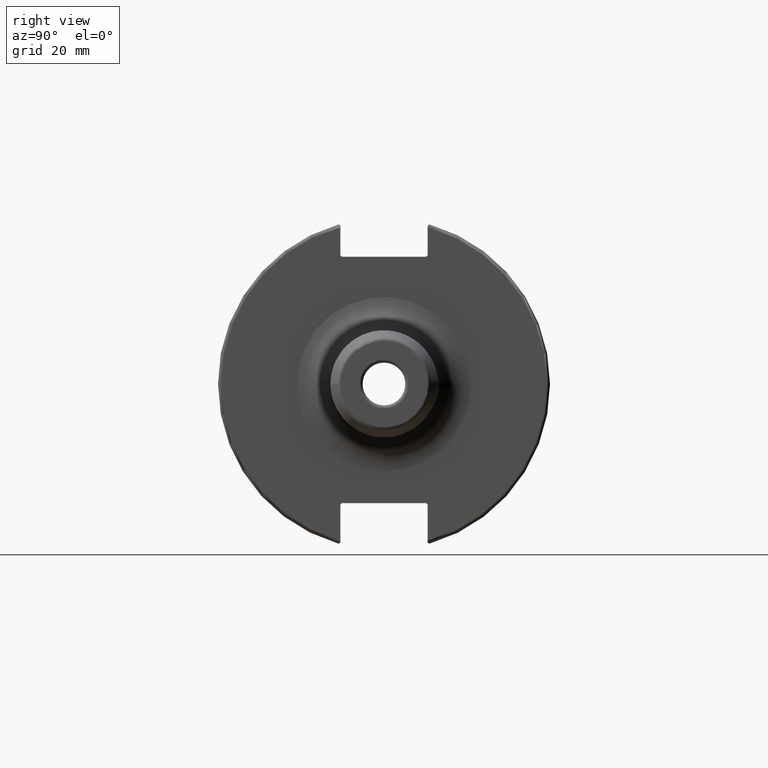
[diagram: clean part render]
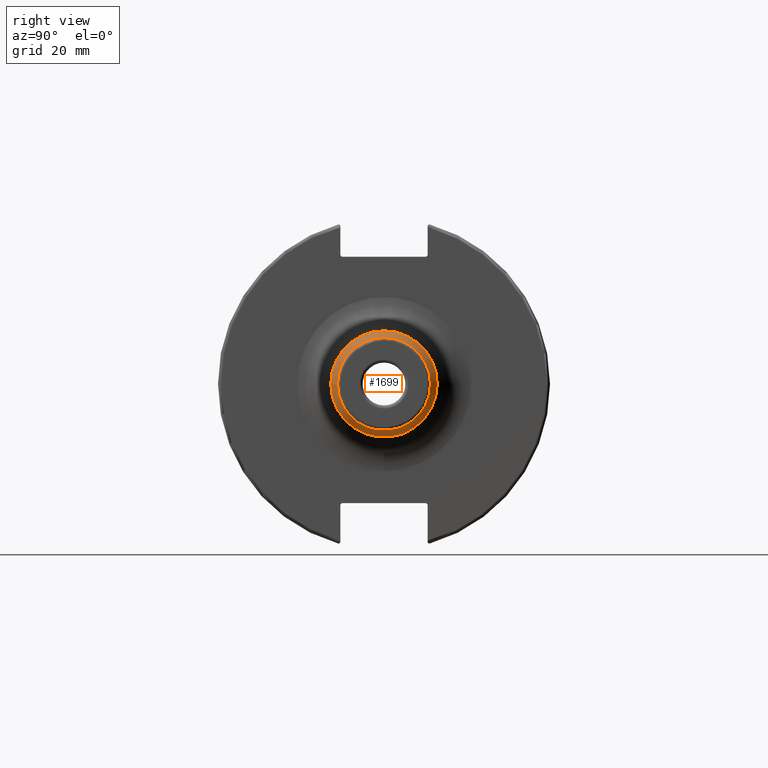
[diagram: same view with one face highlighted and labeled with its STEP entity id]
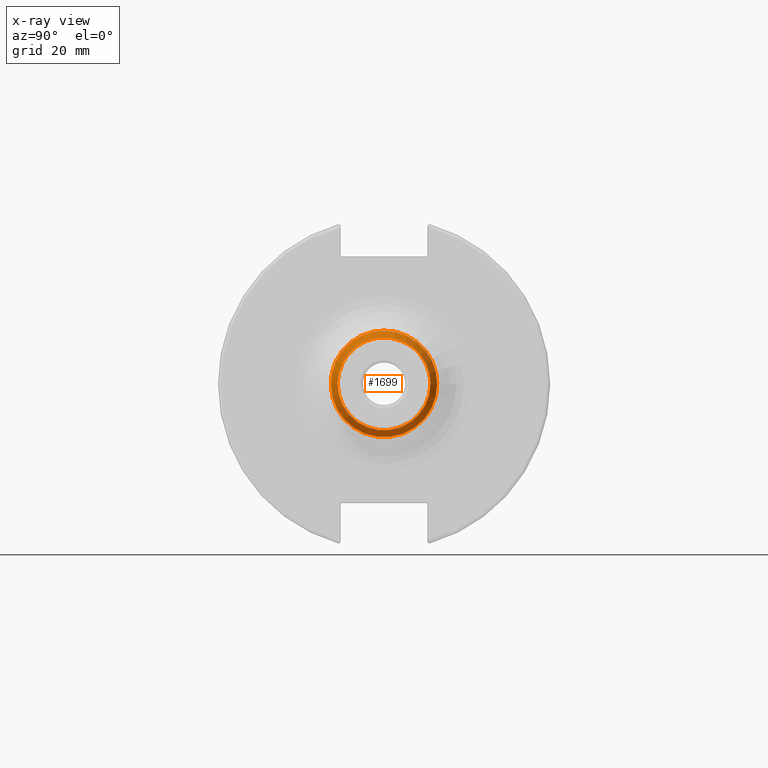
[diagram: x-ray of the same camera — body ghosted, the highlighted face saturated]
A machine part, right view. The second image highlights one B-rep face of the part: STEP entity #1699.
The next image is the same camera in x-ray: the body ghosted, the highlighted face saturated — about 0% of this face is hidden behind the body in this view.
In plain terms, the highlighted conical surface has half-angle 25 deg.
Its self-contained STEP definition (entity closure, byte-faithful):
#101=CONICAL_SURFACE('',#1827,14.6875,0.436332312998581);
#129=LINE('',#2714,#224);
#224=VECTOR('',#2079,14.6875);
#320=CIRCLE('',#1823,15.7813077870367);
#321=CIRCLE('',#1824,15.7813077870367);
#323=CIRCLE('',#1826,15.7813077870367);
#324=CIRCLE('',#1828,13.7692375262292);
#325=CIRCLE('',#1829,13.7692375262292);
#326=CIRCLE('',#1830,13.7692375262292);
#452=FACE_OUTER_BOUND('',#544,.T.);
#544=EDGE_LOOP('',(#1213,#1214,#1215,#1216,#1217,#1218,#1219,#1220));
#719=VERTEX_POINT('',#2701);
#720=VERTEX_POINT('',#2702);
#721=VERTEX_POINT('',#2704);
#722=VERTEX_POINT('',#2709);
#723=VERTEX_POINT('',#2710);
#724=VERTEX_POINT('',#2712);
#916=EDGE_CURVE('',#719,#720,#320,.T.);
#917=EDGE_CURVE('',#720,#721,#321,.T.);
#919=EDGE_CURVE('',#721,#719,#323,.T.);
#920=EDGE_CURVE('',#722,#723,#324,.T.);
#921=EDGE_CURVE('',#724,#722,#325,.T.);
#922=EDGE_CURVE('',#724,#720,#129,.T.);
#923=EDGE_CURVE('',#723,#724,#326,.T.);
#1213=ORIENTED_EDGE('',*,*,#920,.F.);
#1214=ORIENTED_EDGE('',*,*,#921,.F.);
#1215=ORIENTED_EDGE('',*,*,#922,.T.);
#1216=ORIENTED_EDGE('',*,*,#916,.F.);
#1217=ORIENTED_EDGE('',*,*,#919,.F.);
#1218=ORIENTED_EDGE('',*,*,#917,.F.);
#1219=ORIENTED_EDGE('',*,*,#922,.F.);
#1220=ORIENTED_EDGE('',*,*,#923,.F.);
#1699=ADVANCED_FACE('',(#452),#101,.T.);
#1823=AXIS2_PLACEMENT_3D('',#2703,#2065,#2066);
#1824=AXIS2_PLACEMENT_3D('',#2705,#2067,#2068);
#1826=AXIS2_PLACEMENT_3D('',#2707,#2071,#2072);
#1827=AXIS2_PLACEMENT_3D('',#2708,#2073,#2074);
#1828=AXIS2_PLACEMENT_3D('',#2711,#2075,#2076);
#1829=AXIS2_PLACEMENT_3D('',#2713,#2077,#2078);
#1830=AXIS2_PLACEMENT_3D('',#2715,#2080,#2081);
#2065=DIRECTION('center_axis',(-1.,0.,0.));
#2066=DIRECTION('ref_axis',(0.,-1.,3.06161699786838E-17));
#2067=DIRECTION('center_axis',(-1.,0.,0.));
#2068=DIRECTION('ref_axis',(0.,-1.,3.06161699786838E-17));
#2071=DIRECTION('center_axis',(-1.,0.,0.));
#2072=DIRECTION('ref_axis',(0.,-1.,3.06161699786838E-17));
#2073=DIRECTION('center_axis',(-1.,0.,0.));
#2074=DIRECTION('ref_axis',(0.,1.,0.));
#2075=DIRECTION('center_axis',(1.,0.,0.));
#2076=DIRECTION('ref_axis',(0.,-1.,3.06161699786838E-17));
#2077=DIRECTION('center_axis',(1.,0.,0.));
#2078=DIRECTION('ref_axis',(0.,-1.,3.06161699786838E-17));
#2079=DIRECTION('',(-0.906307787036651,-0.422618261740698,-5.17558101501964E-17));
#2080=DIRECTION('center_axis',(1.,0.,0.));
#2081=DIRECTION('ref_axis',(0.,-1.,3.06161699786838E-17));
#2701=CARTESIAN_POINT('',(61.9077196628875,15.7813077870367,-4.83163201693841E-15));
#2702=CARTESIAN_POINT('',(61.9077196628875,-15.7813077870367,-1.93265280677536E-15));
#2703=CARTESIAN_POINT('Origin',(61.9077196628875,0.,-2.4158160084692E-15));
#2704=CARTESIAN_POINT('',(61.9077196628875,-1.93265280677536E-15,15.7813077870367));
#2705=CARTESIAN_POINT('Origin',(61.9077196628875,0.,-2.4158160084692E-15));
#2707=CARTESIAN_POINT('Origin',(61.9077196628875,0.,-2.4158160084692E-15));
#2708=CARTESIAN_POINT('Origin',(64.2533980318949,0.,0.));
#2709=CARTESIAN_POINT('',(66.2226182617407,13.7692375262292,-8.43122633159808E-16));
#2710=CARTESIAN_POINT('',(66.2226182617407,-1.68624526631962E-15,13.7692375262292));
#2711=CARTESIAN_POINT('Origin',(66.2226182617407,0.,-2.10780658289952E-15));
#2712=CARTESIAN_POINT('',(66.2226182617407,-13.7692375262292,-1.68624526631962E-15));
#2713=CARTESIAN_POINT('Origin',(66.2226182617407,0.,-2.10780658289952E-15));
#2714=CARTESIAN_POINT('',(64.2533980318949,-14.6875,-1.79869998624767E-15));
#2715=CARTESIAN_POINT('Origin',(66.2226182617407,0.,-2.10780658289952E-15));